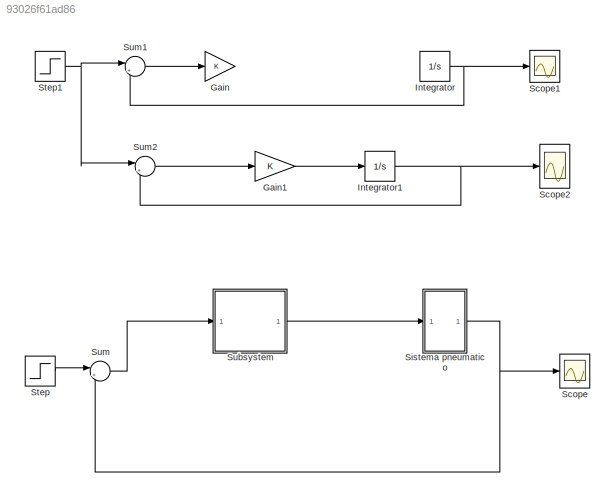
MODEL slx_93026f61ad86
KIND model
CONFIG AbsTol = auto
CONFIG EnableMultiTasking = off
CONFIG FixedStep = 1e-6
CONFIG MaxStep = auto
CONFIG MinStep = auto
CONFIG RelTol = 1e-3
CONFIG SampleTimeConstraint = Unconstrained
CONFIG SolverName = ode14x
CONFIG StartTime = 0.0
CONFIG StopTime = 10
BLOCK [Gain] Gain
  Commented = on
BLOCK [Gain] Gain1
  Commented = on
BLOCK [Integrator] Integrator
  Commented = on
  InitialCondition = 1
  ZeroCross = off
BLOCK [Integrator] Integrator1
  Commented = on
BLOCK [Scope] Scope
  Floating = off
  NumInputPorts = 1
  ScopeSpecificationString = Simulink.scopes.TimeScopeBlockCfg('CurrentConfiguration', extmgr.ConfigurationSet(extmgr.Configuration('Core','General UI',true),extmgr.Configuration('Core','Source UI',true),extmgr.Configuration('Sources','WiredSimulink',true,'DataLogging',true,'DataLoggingVariableName','Y','DataLoggingSaveFormat','Array'),extmgr.Configuration('Visuals','Time Domain',true,'SerializedDisplays',{struct('MinYLimReal...<+1444ch>
BLOCK [Scope] Scope1
  Commented = on
  Floating = off
  NumInputPorts = 1
  ScopeSpecificationString = Simulink.scopes.TimeScopeBlockCfg('CurrentConfiguration', extmgr.ConfigurationSet(extmgr.Configuration('Core','General UI',true),extmgr.Configuration('Core','Source UI',true),extmgr.Configuration('Sources','WiredSimulink',true,'DataLoggingVariableName','ScopeData1'),extmgr.Configuration('Visuals','Time Domain',true),extmgr.Configuration('Tools','Plot Navigation',true),extmgr.Configuration('Tools',...<+40ch>
BLOCK [Scope] Scope2
  Commented = on
  Floating = off
  NumInputPorts = 1
  ScopeSpecificationString = Simulink.scopes.TimeScopeBlockCfg('CurrentConfiguration', extmgr.ConfigurationSet(extmgr.Configuration('Core','General UI',true),extmgr.Configuration('Core','Source UI',true),extmgr.Configuration('Sources','WiredSimulink',true,'DataLoggingVariableName','ScopeData2'),extmgr.Configuration('Visuals','Time Domain',true,'SerializedDisplays',{struct('MinYLimReal','-0.01076','MaxYLimReal','0.09683','YLab...<+1370ch>
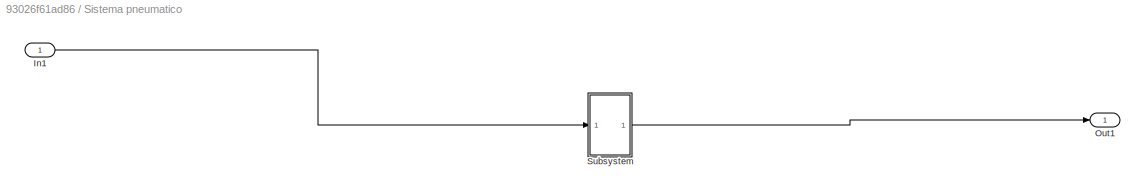
BLOCK [SubSystem] Sistema pneumatico
BLOCK [Inport] Sistema pneumatico/In1
BLOCK [Outport] Sistema pneumatico/Out1
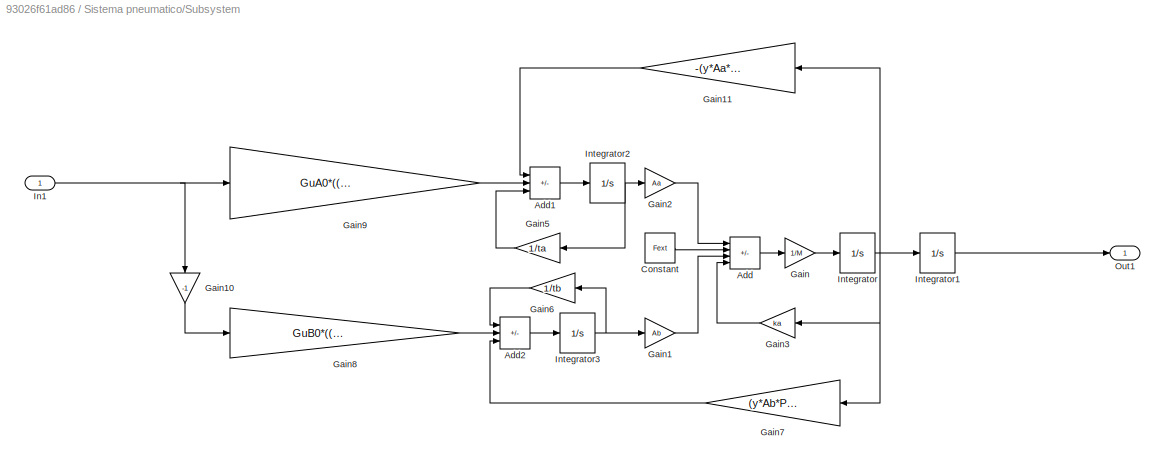
BLOCK [SubSystem] Sistema pneumatico/Subsystem
BLOCK [Sum] Sistema pneumatico/Subsystem/Add
  IconShape = rectangular
  Inputs = +---
BLOCK [Sum] Sistema pneumatico/Subsystem/Add1
  IconShape = rectangular
  Inputs = ++-
BLOCK [Sum] Sistema pneumatico/Subsystem/Add2
  IconShape = rectangular
  Inputs = -++
BLOCK [Constant] Sistema pneumatico/Subsystem/Constant
  Value = Fext
BLOCK [Gain] Sistema pneumatico/Subsystem/Gain
  Gain = 1/M
BLOCK [Gain] Sistema pneumatico/Subsystem/Gain1
  Gain = Ab
BLOCK [Gain] Sistema pneumatico/Subsystem/Gain10
  Gain = -1
  NameLocation = left
BLOCK [Gain] Sistema pneumatico/Subsystem/Gain11
  Gain = -(y*Aa*PA0)/VA0
  NameLocation = top
BLOCK [Gain] Sistema pneumatico/Subsystem/Gain2
  Gain = Aa
BLOCK [Gain] Sistema pneumatico/Subsystem/Gain3
  Gain = ka
  NameLocation = top
BLOCK [Gain] Sistema pneumatico/Subsystem/Gain5
  Gain = 1/ta
  NameLocation = top
BLOCK [Gain] Sistema pneumatico/Subsystem/Gain6
  Gain = 1/tb
  NameLocation = top
BLOCK [Gain] Sistema pneumatico/Subsystem/Gain7
  Gain = (y*Ab*PB0)/VB0
  NameLocation = top
BLOCK [Gain] Sistema pneumatico/Subsystem/Gain8
  Gain = GuB0*((y*R*TB0)/(VB0))
BLOCK [Gain] Sistema pneumatico/Subsystem/Gain9
  Gain = GuA0*((y*R*TA0)/(VA0))
BLOCK [Inport] Sistema pneumatico/Subsystem/In1
BLOCK [Integrator] Sistema pneumatico/Subsystem/Integrator
BLOCK [Integrator] Sistema pneumatico/Subsystem/Integrator1
BLOCK [Integrator] Sistema pneumatico/Subsystem/Integrator2
BLOCK [Integrator] Sistema pneumatico/Subsystem/Integrator3
BLOCK [Outport] Sistema pneumatico/Subsystem/Out1
BLOCK [Step] Step
  After = 0.2
  SampleTime = 0
BLOCK [Step] Step1
  Commented = on
  SampleTime = 0
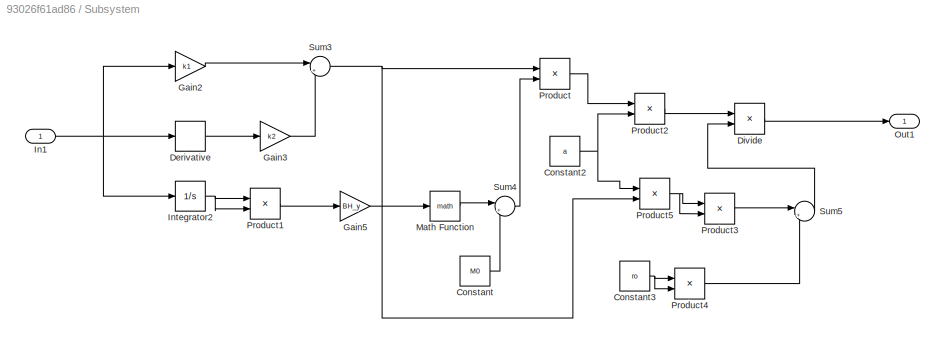
BLOCK [SubSystem] Subsystem
BLOCK [Constant] Subsystem/Constant
  Value = M0
BLOCK [Constant] Subsystem/Constant2
  Value = a
BLOCK [Constant] Subsystem/Constant3
  Value = ro
BLOCK [Derivative] Subsystem/Derivative
BLOCK [Product] Subsystem/Divide
  Inputs = */
BLOCK [Gain] Subsystem/Gain2
  Gain = k1
BLOCK [Gain] Subsystem/Gain3
  Gain = k2
BLOCK [Gain] Subsystem/Gain5
  Gain = BH_y
BLOCK [Inport] Subsystem/In1
BLOCK [Integrator] Subsystem/Integrator2
BLOCK [Math] Subsystem/Math Function
BLOCK [Outport] Subsystem/Out1
BLOCK [Product] Subsystem/Product
BLOCK [Product] Subsystem/Product1
BLOCK [Product] Subsystem/Product2
BLOCK [Product] Subsystem/Product3
BLOCK [Product] Subsystem/Product4
BLOCK [Product] Subsystem/Product5
BLOCK [Sum] Subsystem/Sum3
  Inputs = |++
BLOCK [Sum] Subsystem/Sum4
  Inputs = |++
BLOCK [Sum] Subsystem/Sum5
  Inputs = |++
BLOCK [Sum] Sum
  Inputs = |+-
BLOCK [Sum] Sum1
  Commented = on
  Inputs = |+-
BLOCK [Sum] Sum2
  Commented = on
  Inputs = |+-
LINE Gain1:1 -> Integrator1:1
NET Integrator1:1 -> Scope2:1, Sum2:2
NET Integrator:1 -> Scope1:1, Sum1:2
LINE Sistema pneumatico/In1:1 -> Sistema pneumatico/Subsystem:1
LINE Sistema pneumatico/Subsystem/Add1:1 -> Sistema pneumatico/Subsystem/Integrator2:1
LINE Sistema pneumatico/Subsystem/Add2:1 -> Sistema pneumatico/Subsystem/Integrator3:1
LINE Sistema pneumatico/Subsystem/Add:1 -> Sistema pneumatico/Subsystem/Gain:1
LINE Sistema pneumatico/Subsystem/Constant:1 -> Sistema pneumatico/Subsystem/Add:2
LINE Sistema pneumatico/Subsystem/Gain10:1 -> Sistema pneumatico/Subsystem/Gain8:1
LINE Sistema pneumatico/Subsystem/Gain11:1 -> Sistema pneumatico/Subsystem/Add1:1
LINE Sistema pneumatico/Subsystem/Gain1:1 -> Sistema pneumatico/Subsystem/Add:3
LINE Sistema pneumatico/Subsystem/Gain2:1 -> Sistema pneumatico/Subsystem/Add:1
LINE Sistema pneumatico/Subsystem/Gain3:1 -> Sistema pneumatico/Subsystem/Add:4
LINE Sistema pneumatico/Subsystem/Gain5:1 -> Sistema pneumatico/Subsystem/Add1:3
LINE Sistema pneumatico/Subsystem/Gain6:1 -> Sistema pneumatico/Subsystem/Add2:1
LINE Sistema pneumatico/Subsystem/Gain7:1 -> Sistema pneumatico/Subsystem/Add2:3
LINE Sistema pneumatico/Subsystem/Gain8:1 -> Sistema pneumatico/Subsystem/Add2:2
LINE Sistema pneumatico/Subsystem/Gain9:1 -> Sistema pneumatico/Subsystem/Add1:2
LINE Sistema pneumatico/Subsystem/Gain:1 -> Sistema pneumatico/Subsystem/Integrator:1
NET Sistema pneumatico/Subsystem/In1:1 -> Sistema pneumatico/Subsystem/Gain10:1, Sistema pneumatico/Subsystem/Gain9:1
LINE Sistema pneumatico/Subsystem/Integrator1:1 -> Sistema pneumatico/Subsystem/Out1:1
NET Sistema pneumatico/Subsystem/Integrator2:1 -> Sistema pneumatico/Subsystem/Gain2:1, Sistema pneumatico/Subsystem/Gain5:1
NET Sistema pneumatico/Subsystem/Integrator3:1 -> Sistema pneumatico/Subsystem/Gain1:1, Sistema pneumatico/Subsystem/Gain6:1
NET Sistema pneumatico/Subsystem/Integrator:1 -> Sistema pneumatico/Subsystem/Gain11:1, Sistema pneumatico/Subsystem/Gain3:1, Sistema pneumatico/Subsystem/Gain7:1, Sistema pneumatico/Subsystem/Integrator1:1
LINE Sistema pneumatico/Subsystem:1 -> Sistema pneumatico/Out1:1
NET Sistema pneumatico:1 -> Scope:1, Sum:2
NET Step1:1 -> Sum1:1, Sum2:1
LINE Step:1 -> Sum:1
NET Subsystem/Constant2:1 -> Subsystem/Product2:2, Subsystem/Product5:1
NET Subsystem/Constant3:1 -> Subsystem/Product4:1, Subsystem/Product4:2
LINE Subsystem/Constant:1 -> Subsystem/Sum4:2
LINE Subsystem/Derivative:1 -> Subsystem/Gain3:1
LINE Subsystem/Divide:1 -> Subsystem/Out1:1
LINE Subsystem/Gain2:1 -> Subsystem/Sum3:1
LINE Subsystem/Gain3:1 -> Subsystem/Sum3:2
LINE Subsystem/Gain5:1 -> Subsystem/Math Function:1
NET Subsystem/In1:1 -> Subsystem/Derivative:1, Subsystem/Gain2:1, Subsystem/Integrator2:1
NET Subsystem/Integrator2:1 -> Subsystem/Product1:1, Subsystem/Product1:2
LINE Subsystem/Math Function:1 -> Subsystem/Sum4:1
LINE Subsystem/Product1:1 -> Subsystem/Gain5:1
LINE Subsystem/Product2:1 -> Subsystem/Divide:1
LINE Subsystem/Product3:1 -> Subsystem/Sum5:1
LINE Subsystem/Product4:1 -> Subsystem/Sum5:2
NET Subsystem/Product5:1 -> Subsystem/Product3:1, Subsystem/Product3:2
LINE Subsystem/Product:1 -> Subsystem/Product2:1
NET Subsystem/Sum3:1 -> Subsystem/Product5:2, Subsystem/Product:1
LINE Subsystem/Sum4:1 -> Subsystem/Product:2
LINE Subsystem/Sum5:1 -> Subsystem/Divide:2
LINE Subsystem:1 -> Sistema pneumatico:1
LINE Sum1:1 -> Gain:1
LINE Sum2:1 -> Gain1:1
LINE Sum:1 -> Subsystem:1
note: NET lines group one-source signal fan-out (src -> all destinations, sorted); 1:1 wires keep LINE
